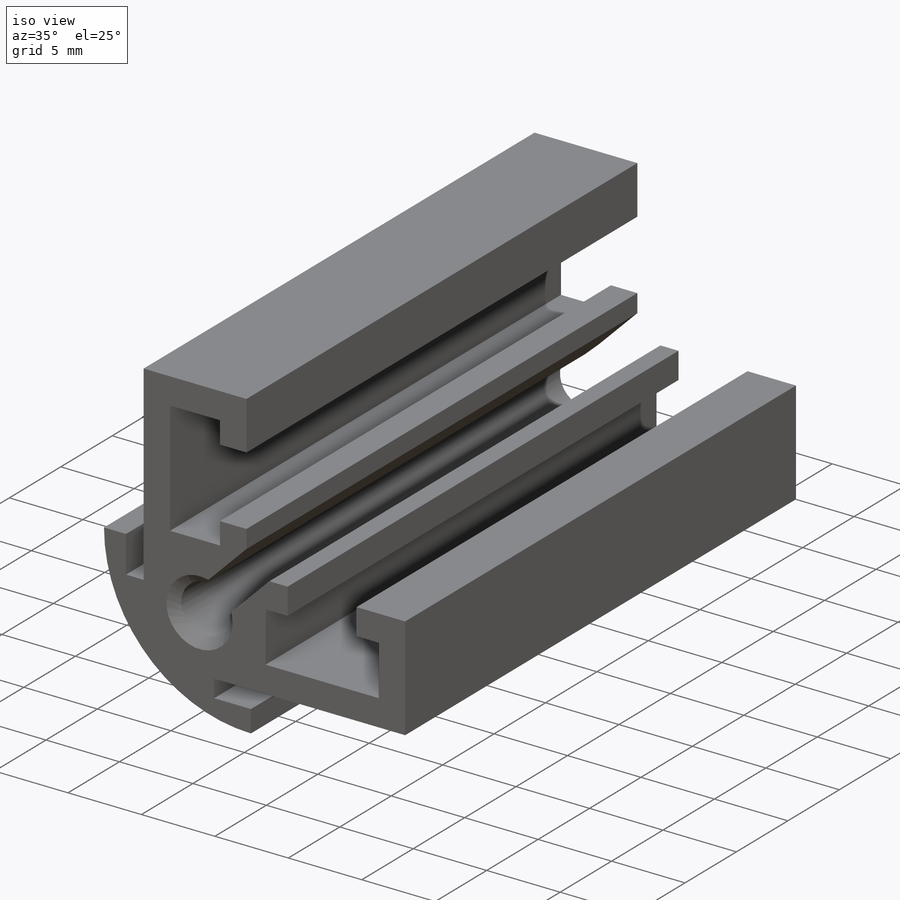
[diagram: iso view]
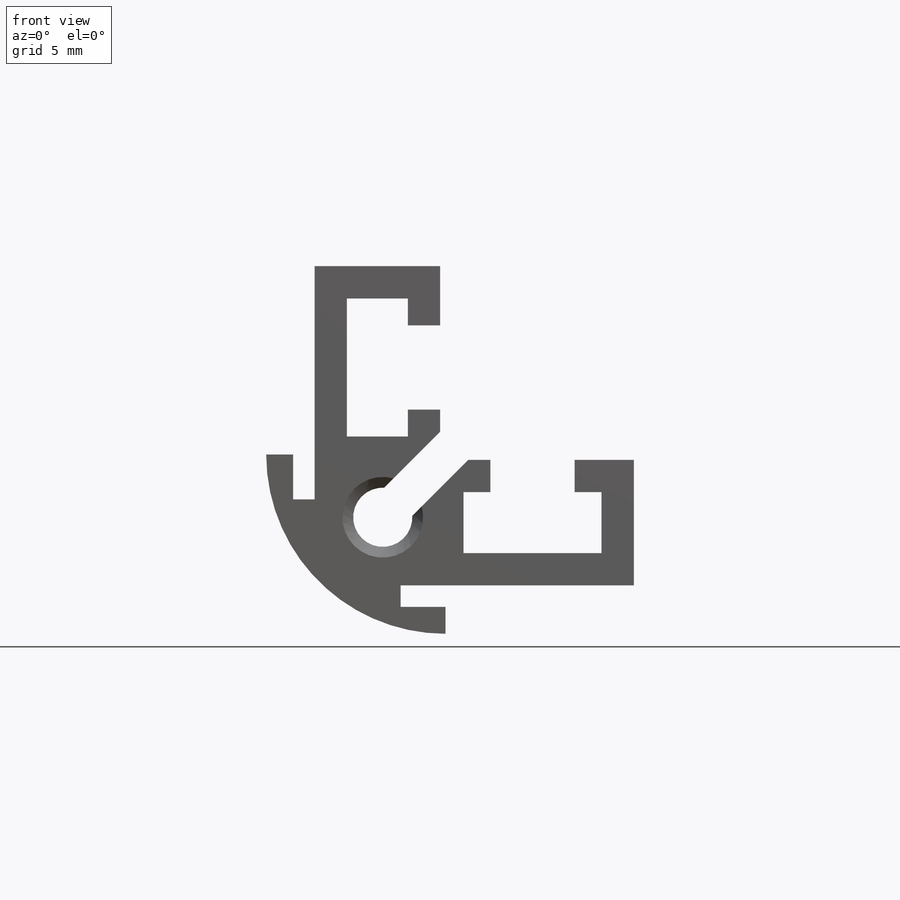
[diagram: front view]
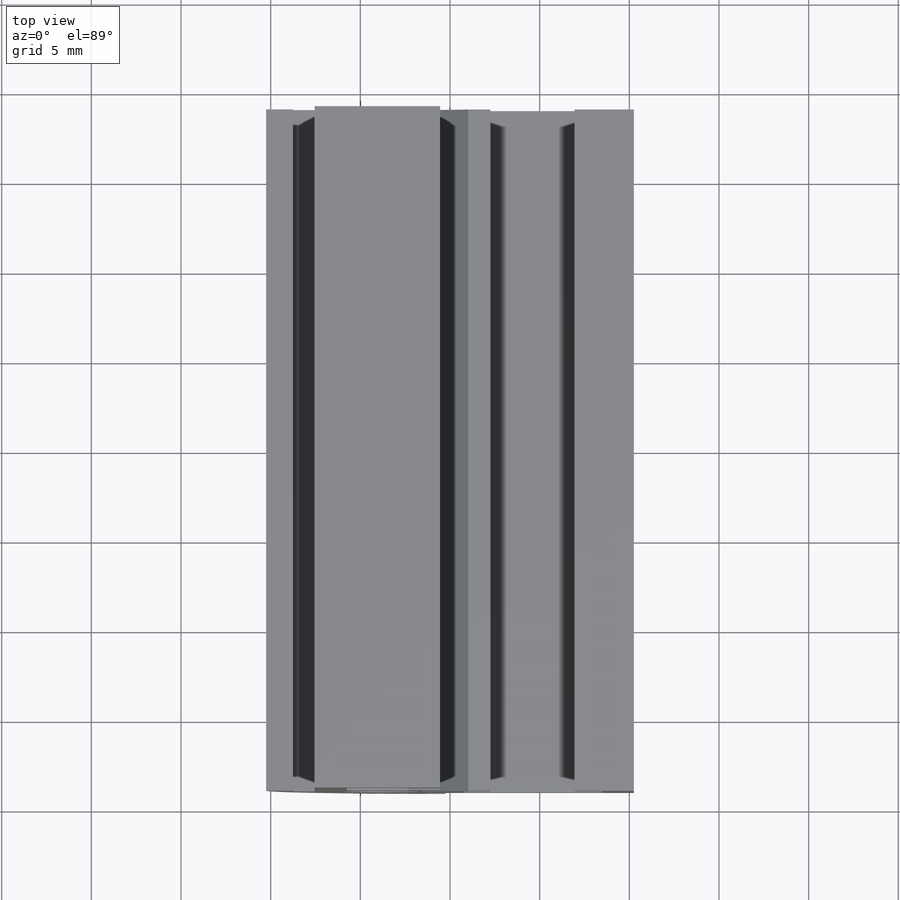
[diagram: top view]
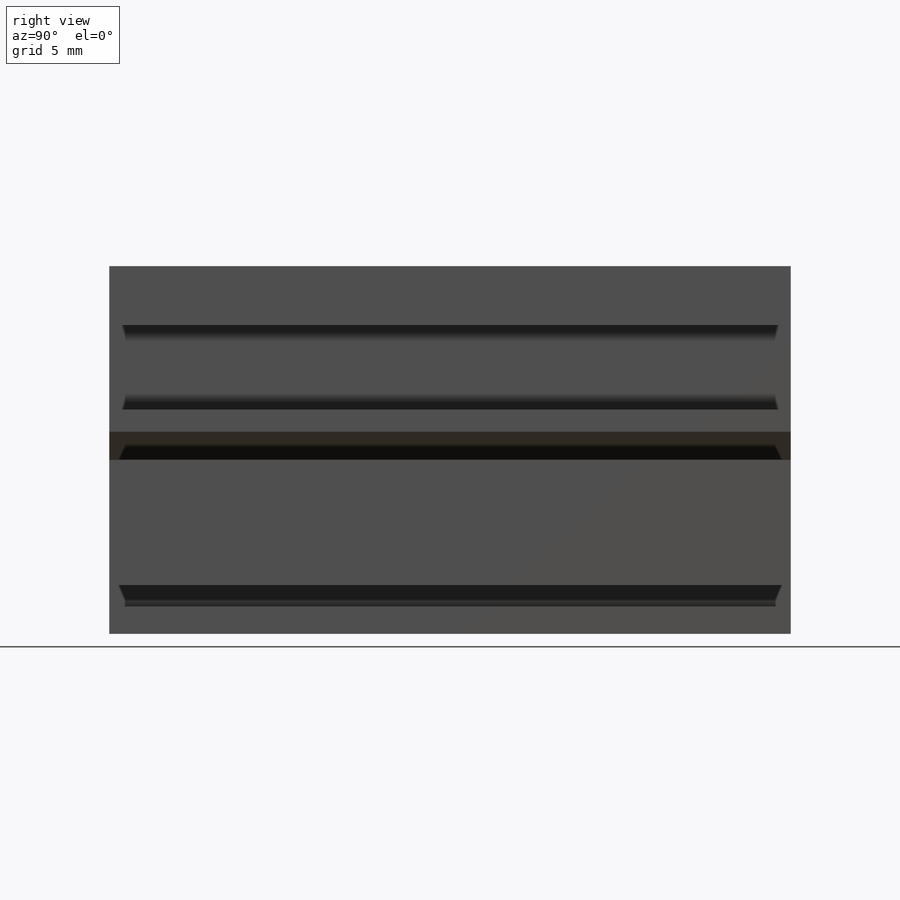
[diagram: right view]
SOLIDWORKS PART (.sldprt)
format: sldprt  version: not decoded by parser v0  size: 317,952 bytes
history: native  units: mm
features: sketch x5, cut_extrude x2, material x1, extrude x1, hole x1, thread x1 (+12 scaffold rows collapsed)
feature tree (23):
  scaffold x12  (default folders/planes/origin — collapsed)
  material  "7079 Alloy"
  sketch  "Sketch1"  dims[D3=10.0mm D1=20.5mm D2=20.5mm]
  extrude  "Extrude1"  Depth=38mm
  sketch  "Sketch2"  dims[c1.D1=12.5mm c1.D2=1.5mm c1.D3=2.5mm c1.D4=1.2mm c1.D5=12.5mm c1.D6=1.5mm c1.D7=1.2mm c1.D8=2.5mm c2.D1=13.0mm c2.D5=13.0mm]
  cut_extrude  "Cut-Extrude1"  [1 undecoded]
  sketch  "Sketch3"  dims[c1.D11=3.0mm c1.D12=4.4mm c1.D13=4.4mm c1.D1=7.0mm c1.D2=3.3mm c1.D3=1.8mm c1.D4=7.7mm c1.D5=3.4mm c1.D6=3.4mm c1.D7=1.5mm c1.D8=1.8mm c1.D9=1.5mm c1.D10=1.23mm c2.D12=6.5mm c2.D13=6.5mm c2.D14=7.0mm c2.D15=7.0mm c2.D16=3.3mm c2.D17=1.8mm c2.D18=1.5mm c2.D19=3.4mm c2.D20=7.7mm c2.D21=3.4mm c2.D22=1.5mm c2.D23=1.8mm c2.D24=1.23mm c2.D25=3.4mm c3.D25=~40.585563deg c4.D25=3.4mm c5.D25=45.0deg c5.D26=3.4mm c6.D26=45.0deg]
  cut_extrude  "Cut-Extrude2"  [1 undecoded]
  hole  "Furo roscado de M41"  Diameter=3.3mm Depth=38mm
  sketch  "Esboço2"
  sketch  "Esboço1"  dims[hole-wizard template sketch: 46 standard entries collapsed; hole parameters kept: c15.Thru Tap Drill Dia.=3.3mm c15.Thru Tap Drill Depth=38.0mm c15.Near C'Sink Dia.=4.5mm c15.D4=~3.666174mm c15.Near C'Sink Angle=90.0deg c15.Far C'Sink Dia.=4.5mm c15.D6=~9.919017mm c15.Far C'Sink Angle=90.0deg]
  thread  "Rosca de furo1"  Diameter=4mm  [1 undecoded]
decode coverage: 7 of 10 modeling features carry decoded parameters
note: ~ marks probable driven/reference dimensions
note: 3 parameter values undecoded
note: suppression state not decoded; provenance and decode notes live in map.json
